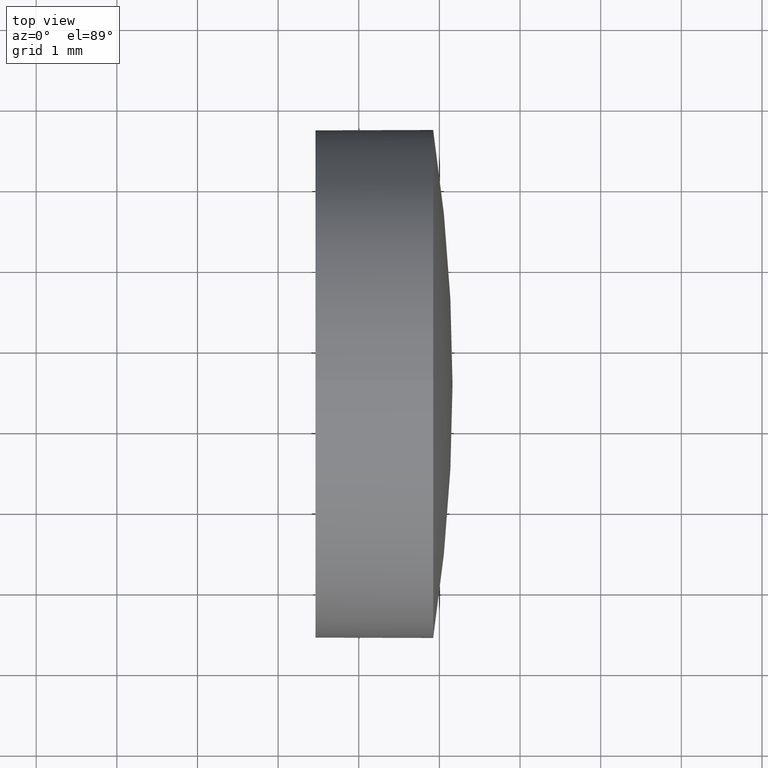
[diagram: clean part render]
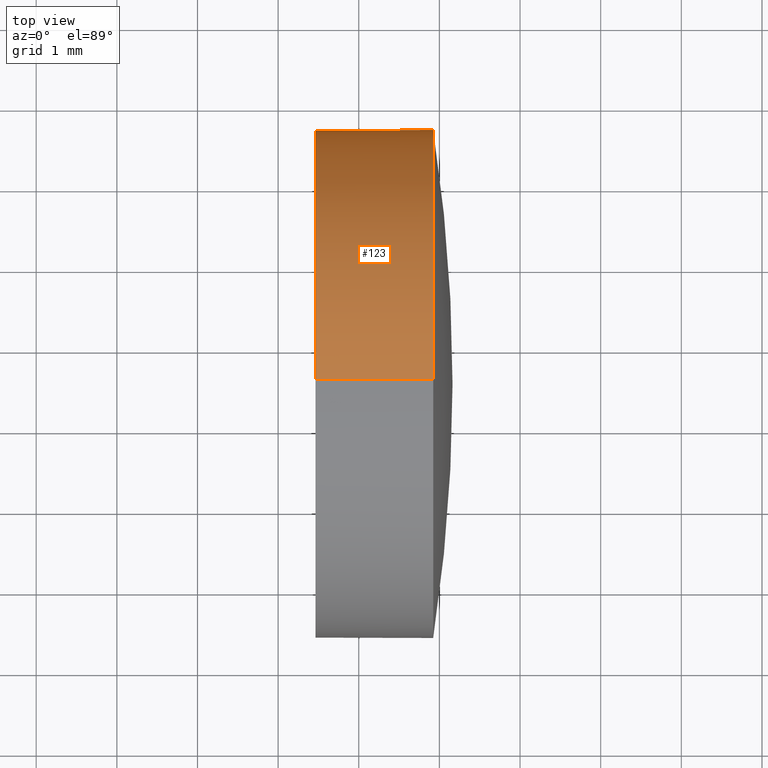
[diagram: same view with one face highlighted and labeled with its STEP entity id]
A machine part, top view. The second image highlights one B-rep face of the part: STEP entity #123.
In plain terms, the highlighted cylindrical surface (partial cylindrical patch) has radius 3.15 mm, axis along (-1, -0, -0).
Its self-contained STEP definition (entity closure, byte-faithful):
#1 = EDGE_CURVE ( 'NONE', #112, #130, #159, .T. ) ;
#14 = DIRECTION ( 'NONE',  ( -1.000000000000000000, -0.0000000000000000000, -0.0000000000000000000 ) ) ;
#23 = CARTESIAN_POINT ( 'NONE',  ( 819.9228674675298400, 336.5592304436489700, 3.149999999999875100 ) ) ;
#25 = LINE ( 'NONE', #34, #27 ) ;
#27 = VECTOR ( 'NONE', #150, 1000.000000000000000 ) ;
#29 = CARTESIAN_POINT ( 'NONE',  ( 819.9228674675298400, 336.5592304436489700, -3.149999999999875100 ) ) ;
#32 = EDGE_CURVE ( 'NONE', #79, #100, #25, .T. ) ;
#34 = CARTESIAN_POINT ( 'NONE',  ( 798.2662876315907900, 336.5592304436489700, -3.149999999999875100 ) ) ;
#51 = AXIS2_PLACEMENT_3D ( 'NONE', #81, #14, #114 ) ;
#54 = ORIENTED_EDGE ( 'NONE', *, *, #32, .T. ) ;
#57 = CARTESIAN_POINT ( 'NONE',  ( 819.9228674675298400, 336.5592304436489700, 0.0000000000000000000 ) ) ;
#61 = AXIS2_PLACEMENT_3D ( 'NONE', #178, #121, #76 ) ;
#66 = VECTOR ( 'NONE', #162, 1000.000000000000000 ) ;
#69 = DIRECTION ( 'NONE',  ( -1.000000000000000000, -0.0000000000000000000, -0.0000000000000000000 ) ) ;
#74 = EDGE_CURVE ( 'NONE', #167, #79, #93, .T. ) ;
#75 = DIRECTION ( 'NONE',  ( -1.000000000000000000, -0.0000000000000000000, -0.0000000000000000000 ) ) ;
#76 = DIRECTION ( 'NONE',  ( 0.0000000000000000000, 0.0000000000000000000, 1.000000000000000000 ) ) ;
#79 = VERTEX_POINT ( 'NONE', #29 ) ;
#81 = CARTESIAN_POINT ( 'NONE',  ( 819.9228674675298400, 336.5592304436489700, 0.0000000000000000000 ) ) ;
#83 = CARTESIAN_POINT ( 'NONE',  ( 818.4628674675299200, 336.5592304436489700, -3.149999999999875100 ) ) ;
#86 = EDGE_CURVE ( 'NONE', #112, #167, #113, .T. ) ;
#90 = CARTESIAN_POINT ( 'NONE',  ( 819.9228674675298400, 339.7092304436488900, 0.0000000000000000000 ) ) ;
#93 = CIRCLE ( 'NONE', #51, 3.149999999999875100 ) ;
#100 = VERTEX_POINT ( 'NONE', #83 ) ;
#104 = ORIENTED_EDGE ( 'NONE', *, *, #1, .F. ) ;
#109 = CYLINDRICAL_SURFACE ( 'NONE', #61, 3.149999999999875100 ) ;
#112 = VERTEX_POINT ( 'NONE', #23 ) ;
#113 = CIRCLE ( 'NONE', #119, 3.149999999999875100 ) ;
#114 = DIRECTION ( 'NONE',  ( 0.0000000000000000000, 0.0000000000000000000, 1.000000000000000000 ) ) ;
#116 = CARTESIAN_POINT ( 'NONE',  ( 798.2662876315907900, 336.5592304436489700, 3.149999999999875100 ) ) ;
#119 = AXIS2_PLACEMENT_3D ( 'NONE', #57, #69, #129 ) ;
#121 = DIRECTION ( 'NONE',  ( -1.000000000000000000, -0.0000000000000000000, -0.0000000000000000000 ) ) ;
#123 = ADVANCED_FACE ( 'NONE', ( #173 ), #109, .T. ) ;
#127 = CIRCLE ( 'NONE', #170, 3.149999999999875100 ) ;
#129 = DIRECTION ( 'NONE',  ( 0.0000000000000000000, 0.0000000000000000000, 1.000000000000000000 ) ) ;
#130 = VERTEX_POINT ( 'NONE', #155 ) ;
#139 = DIRECTION ( 'NONE',  ( 0.0000000000000000000, 0.0000000000000000000, 1.000000000000000000 ) ) ;
#146 = ORIENTED_EDGE ( 'NONE', *, *, #86, .T. ) ;
#150 = DIRECTION ( 'NONE',  ( -1.000000000000000000, -0.0000000000000000000, -0.0000000000000000000 ) ) ;
#151 = ORIENTED_EDGE ( 'NONE', *, *, #74, .T. ) ;
#155 = CARTESIAN_POINT ( 'NONE',  ( 818.4628674675299200, 336.5592304436489700, 3.149999999999875100 ) ) ;
#159 = LINE ( 'NONE', #116, #66 ) ;
#162 = DIRECTION ( 'NONE',  ( -1.000000000000000000, -0.0000000000000000000, -0.0000000000000000000 ) ) ;
#167 = VERTEX_POINT ( 'NONE', #90 ) ;
#168 = CARTESIAN_POINT ( 'NONE',  ( 818.4628674675299200, 336.5592304436489700, 0.0000000000000000000 ) ) ;
#169 = EDGE_LOOP ( 'NONE', ( #151, #54, #171, #104, #146 ) ) ;
#170 = AXIS2_PLACEMENT_3D ( 'NONE', #168, #75, #139 ) ;
#171 = ORIENTED_EDGE ( 'NONE', *, *, #176, .F. ) ;
#173 = FACE_OUTER_BOUND ( 'NONE', #169, .T. ) ;
#176 = EDGE_CURVE ( 'NONE', #130, #100, #127, .T. ) ;
#178 = CARTESIAN_POINT ( 'NONE',  ( 798.2662876315907900, 336.5592304436489700, 0.0000000000000000000 ) ) ;